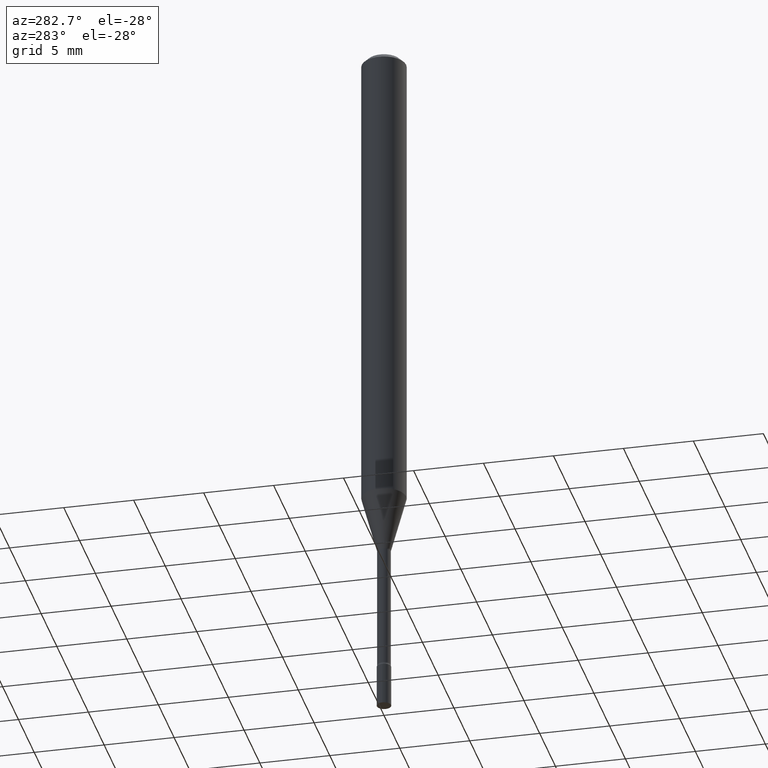
[diagram: clean part render]
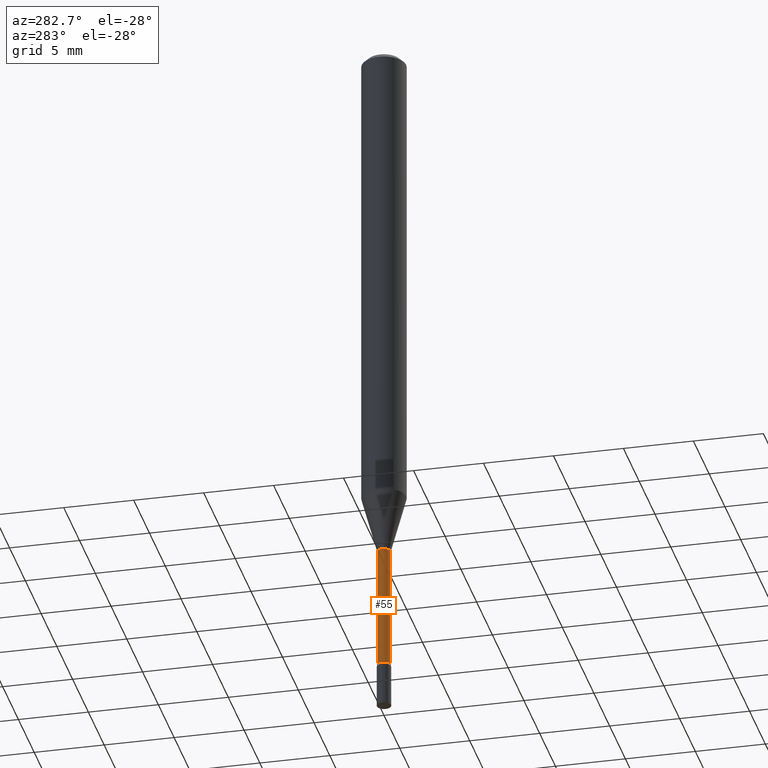
[diagram: same view with one face highlighted and labeled with its STEP entity id]
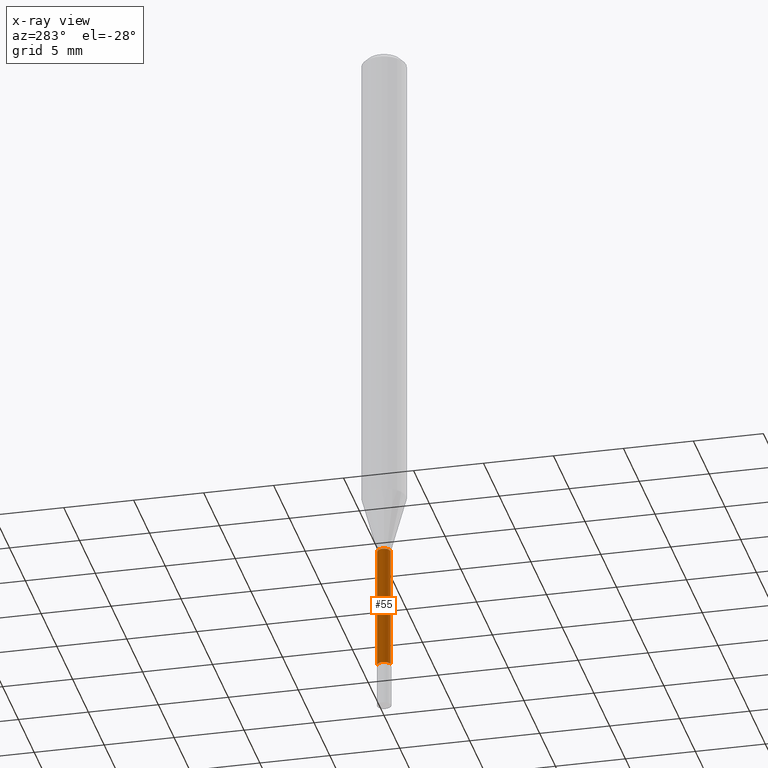
[diagram: x-ray of the same camera — body ghosted, the highlighted face saturated]
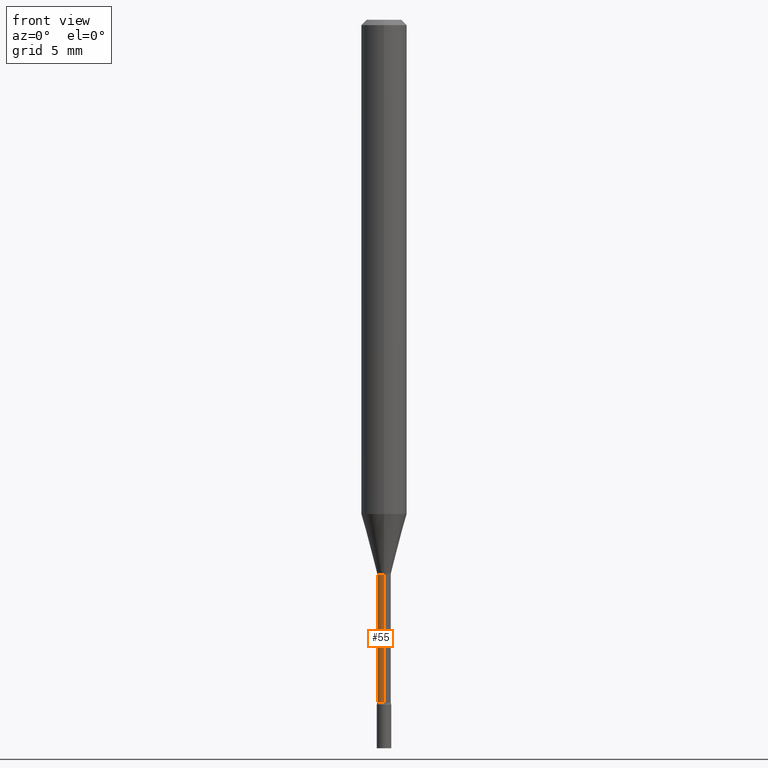
[diagram: same view with one face highlighted and labeled with its STEP entity id]
A machine part, auxiliary view. The second image highlights one B-rep face of the part: STEP entity #55.
The next image is the same camera in x-ray: the body ghosted, the highlighted face saturated — about 0% of this face is hidden behind the body in this view.
A second angle (front view) of the same face is appended — the face is thin or edge-on in the first view.
In plain terms, the highlighted cylindrical surface (edge-blend (fillet) strip) has radius 0.4775 mm, axis along (-0, 0, 1).
Its self-contained STEP definition (entity closure, byte-faithful):
#3 = ORIENTED_EDGE ( 'NONE', *, *, #150, .T. ) ;
#35 = AXIS2_PLACEMENT_3D ( 'NONE', #414, #499, #452 ) ;
#48 = VECTOR ( 'NONE', #334, 39.37007874015748143 ) ;
#55 = ADVANCED_FACE ( 'NONE', ( #443 ), #212, .T. ) ;
#60 = VERTEX_POINT ( 'NONE', #245 ) ;
#78 = DIRECTION ( 'NONE',  ( -2.445495531220379276E-29, 3.491443067071583478E-15, 1.000000000000000000 ) ) ;
#97 = CARTESIAN_POINT ( 'NONE',  ( 1.335820343229447174E-16, 0.01879999999999468555, -1.521974787463810985 ) ) ;
#132 = CARTESIAN_POINT ( 'NONE',  ( 1.335820343228988648E-16, 0.01880000000000000768, -6.563912966094579717E-17 ) ) ;
#137 = LINE ( 'NONE', #456, #410 ) ;
#150 = EDGE_CURVE ( 'NONE', #195, #351, #232, .T. ) ;
#172 = ORIENTED_EDGE ( 'NONE', *, *, #509, .T. ) ;
#174 = CARTESIAN_POINT ( 'NONE',  ( 1.378452907375054653E-16, 0.01879999999999347471, -1.874121224617320225 ) ) ;
#182 = DIRECTION ( 'NONE',  ( -6.982962677686265922E-15, -1.000000000000000000, 0.000000000000000000 ) ) ;
#195 = VERTEX_POINT ( 'NONE', #174 ) ;
#199 = DIRECTION ( 'NONE',  ( -6.982962677686265922E-15, -1.000000000000000000, 0.000000000000000000 ) ) ;
#212 = CYLINDRICAL_SURFACE ( 'NONE', #35, 0.01880000000000000768 ) ;
#217 = AXIS2_PLACEMENT_3D ( 'NONE', #478, #78, #199 ) ;
#225 = ORIENTED_EDGE ( 'NONE', *, *, #503, .F. ) ;
#232 = CIRCLE ( 'NONE', #217, 0.01880000000000001809 ) ;
#239 = CARTESIAN_POINT ( 'NONE',  ( -1.312796983404560969E-16, -0.01880000000000656146, -1.874121224617320225 ) ) ;
#245 = CARTESIAN_POINT ( 'NONE',  ( -1.312796983404645772E-16, -0.01880000000000531246, -1.521974787463810985 ) ) ;
#295 = DIRECTION ( 'NONE',  ( -2.445495531220379276E-29, 3.491443067071583478E-15, 1.000000000000000000 ) ) ;
#319 = EDGE_LOOP ( 'NONE', ( #225, #3, #172, #477 ) ) ;
#334 = DIRECTION ( 'NONE',  ( -2.445495531220379276E-29, 3.491443067071583478E-15, 1.000000000000000000 ) ) ;
#351 = VERTEX_POINT ( 'NONE', #239 ) ;
#384 = CARTESIAN_POINT ( 'NONE',  ( 3.721982541372836389E-29, -5.313888319948269223E-15, -1.521974787463810985 ) ) ;
#389 = EDGE_CURVE ( 'NONE', #492, #60, #507, .T. ) ;
#410 = VECTOR ( 'NONE', #295, 39.37007874015748143 ) ;
#414 = CARTESIAN_POINT ( 'NONE',  ( 0.000000000000000000, 0.000000000000000000, 0.000000000000000000 ) ) ;
#443 = FACE_OUTER_BOUND ( 'NONE', #319, .T. ) ;
#451 = AXIS2_PLACEMENT_3D ( 'NONE', #384, #510, #182 ) ;
#452 = DIRECTION ( 'NONE',  ( -6.982962677686265922E-15, -1.000000000000000000, 3.491443067071583478E-15 ) ) ;
#456 = CARTESIAN_POINT ( 'NONE',  ( -1.312796983405018508E-16, -0.01880000000000000768, 6.563912966094579717E-17 ) ) ;
#477 = ORIENTED_EDGE ( 'NONE', *, *, #389, .F. ) ;
#478 = CARTESIAN_POINT ( 'NONE',  ( 4.583155079766921623E-29, -6.543387556541848814E-15, -1.874121224617320225 ) ) ;
#492 = VERTEX_POINT ( 'NONE', #97 ) ;
#494 = LINE ( 'NONE', #132, #48 ) ;
#499 = DIRECTION ( 'NONE',  ( -2.445495531220379276E-29, 3.491443067071583478E-15, 1.000000000000000000 ) ) ;
#503 = EDGE_CURVE ( 'NONE', #195, #492, #494, .T. ) ;
#507 = CIRCLE ( 'NONE', #451, 0.01879999999999999727 ) ;
#509 = EDGE_CURVE ( 'NONE', #351, #60, #137, .T. ) ;
#510 = DIRECTION ( 'NONE',  ( -2.445495531220379276E-29, 3.491443067071583478E-15, 1.000000000000000000 ) ) ;